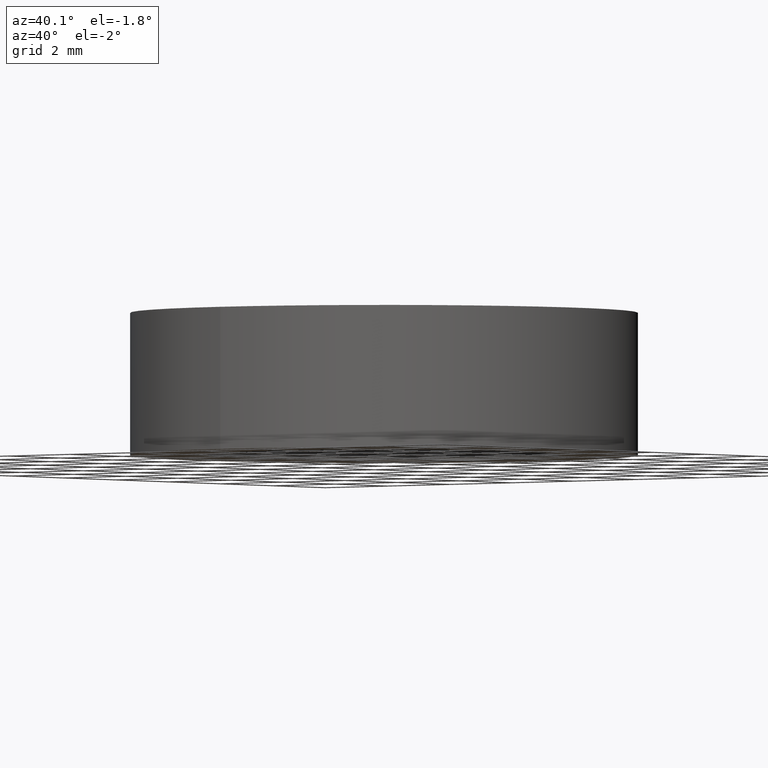
[diagram: clean part render]
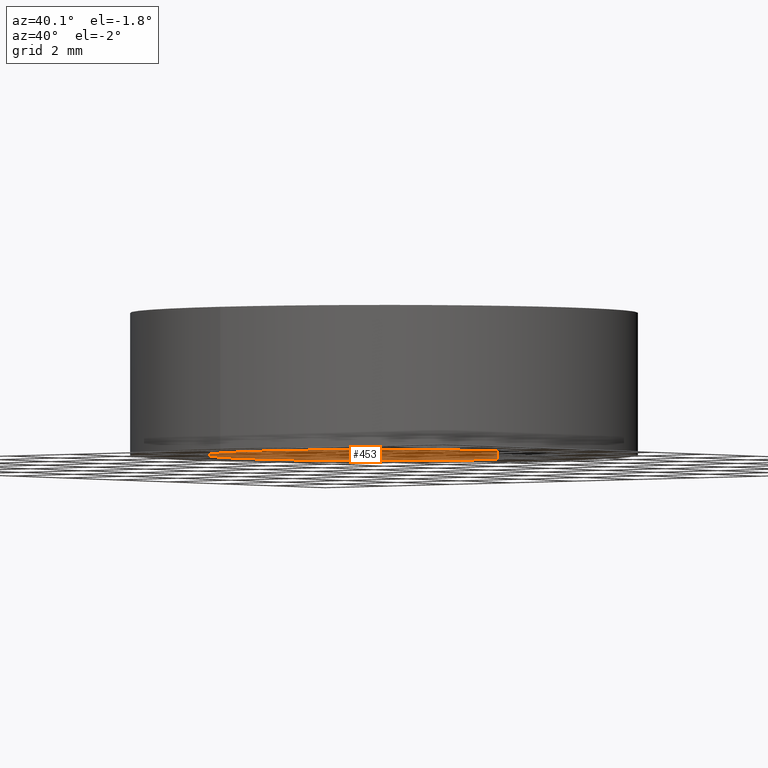
[diagram: same view with one face highlighted and labeled with its STEP entity id]
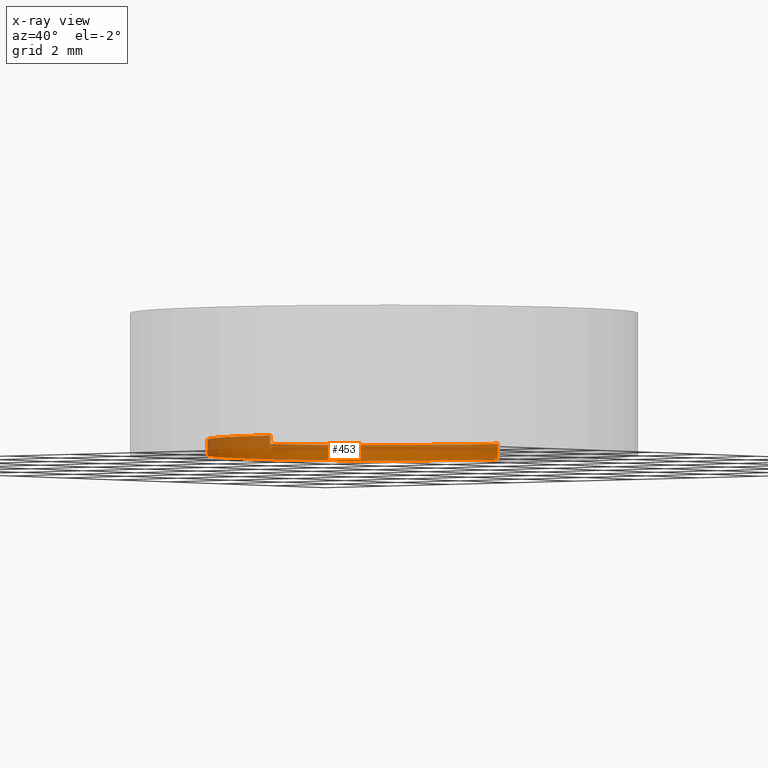
[diagram: x-ray of the same camera — body ghosted, the highlighted face saturated]
A machine part, auxiliary view. The second image highlights one B-rep face of the part: STEP entity #453.
The next image is the same camera in x-ray: the body ghosted, the highlighted face saturated — about 41% of this face is hidden behind the body in this view.
In plain terms, the highlighted cylindrical surface (partial cylindrical patch) has radius 4.3434 mm, axis along (0, 0, -1).
Its self-contained STEP definition (entity closure, byte-faithful):
#4 = DIRECTION ( 'NONE',  ( 0.0000000000000000000, 1.000000000000000000, 1.224606353822377751E-16 ) ) ;
#14 = ORIENTED_EDGE ( 'NONE', *, *, #460, .T. ) ;
#21 = CARTESIAN_POINT ( 'NONE',  ( 5.319130907416610252E-16, -4.343399999999999928, -1.063791047438421996E-15 ) ) ;
#30 = VERTEX_POINT ( 'NONE', #287 ) ;
#36 = EDGE_CURVE ( 'NONE', #224, #627, #191, .T. ) ;
#65 = VECTOR ( 'NONE', #450, 1000.000000000000000 ) ;
#77 = DIRECTION ( 'NONE',  ( 0.0000000000000000000, 1.224606353822377751E-16, -1.000000000000000000 ) ) ;
#88 = ORIENTED_EDGE ( 'NONE', *, *, #185, .T. ) ;
#95 = CARTESIAN_POINT ( 'NONE',  ( 0.0000000000000000000, 4.343399999999999928, 0.0000000000000000000 ) ) ;
#131 = DIRECTION ( 'NONE',  ( 0.0000000000000000000, 1.000000000000000000, 1.224606353822377751E-16 ) ) ;
#153 = CARTESIAN_POINT ( 'NONE',  ( 0.0000000000000000000, 4.343399999999999928, 0.3810000000000000053 ) ) ;
#178 = DIRECTION ( 'NONE',  ( 0.0000000000000000000, 1.248103067280821700E-16, -1.000000000000000000 ) ) ;
#181 = CIRCLE ( 'NONE', #265, 4.343399999999999928 ) ;
#185 = EDGE_CURVE ( 'NONE', #368, #627, #181, .T. ) ;
#191 = LINE ( 'NONE', #645, #226 ) ;
#196 = DIRECTION ( 'NONE',  ( 0.0000000000000000000, 1.224606353822377751E-16, -1.000000000000000000 ) ) ;
#224 = VERTEX_POINT ( 'NONE', #153 ) ;
#226 = VECTOR ( 'NONE', #344, 1000.000000000000000 ) ;
#227 = AXIS2_PLACEMENT_3D ( 'NONE', #602, #178, #642 ) ;
#265 = AXIS2_PLACEMENT_3D ( 'NONE', #294, #196, #4 ) ;
#287 = CARTESIAN_POINT ( 'NONE',  ( 5.319130907416610252E-16, -4.343399999999999928, 0.3810000000000000053 ) ) ;
#294 = CARTESIAN_POINT ( 'NONE',  ( 0.0000000000000000000, 6.513626379162269541E-32, -5.318955237192109979E-16 ) ) ;
#344 = DIRECTION ( 'NONE',  ( 0.0000000000000000000, 1.224606353822375779E-16, -1.000000000000000000 ) ) ;
#368 = VERTEX_POINT ( 'NONE', #21 ) ;
#373 = ORIENTED_EDGE ( 'NONE', *, *, #36, .F. ) ;
#393 = LINE ( 'NONE', #592, #65 ) ;
#445 = ORIENTED_EDGE ( 'NONE', *, *, #465, .F. ) ;
#446 = CYLINDRICAL_SURFACE ( 'NONE', #655, 4.343399999999999928 ) ;
#450 = DIRECTION ( 'NONE',  ( 0.0000000000000000000, 1.224606353822375779E-16, -1.000000000000000000 ) ) ;
#453 = ADVANCED_FACE ( 'NONE', ( #594 ), #446, .F. ) ;
#460 = EDGE_CURVE ( 'NONE', #30, #368, #393, .T. ) ;
#465 = EDGE_CURVE ( 'NONE', #30, #224, #572, .T. ) ;
#495 = CARTESIAN_POINT ( 'NONE',  ( 0.0000000000000000000, 0.0000000000000000000, 0.0000000000000000000 ) ) ;
#551 = EDGE_LOOP ( 'NONE', ( #445, #14, #88, #373 ) ) ;
#572 = CIRCLE ( 'NONE', #227, 4.343399999999999928 ) ;
#592 = CARTESIAN_POINT ( 'NONE',  ( 5.319130907416610252E-16, -4.343399999999999928, -5.318955237192109979E-16 ) ) ;
#594 = FACE_OUTER_BOUND ( 'NONE', #551, .T. ) ;
#602 = CARTESIAN_POINT ( 'NONE',  ( 0.0000000000000000000, -4.665750208063249815E-17, 0.3810000000000000053 ) ) ;
#627 = VERTEX_POINT ( 'NONE', #95 ) ;
#642 = DIRECTION ( 'NONE',  ( 0.0000000000000000000, 1.000000000000000000, 1.248103067280821946E-16 ) ) ;
#645 = CARTESIAN_POINT ( 'NONE',  ( 0.0000000000000000000, 4.343399999999999928, 5.318955237192109979E-16 ) ) ;
#655 = AXIS2_PLACEMENT_3D ( 'NONE', #495, #77, #131 ) ;